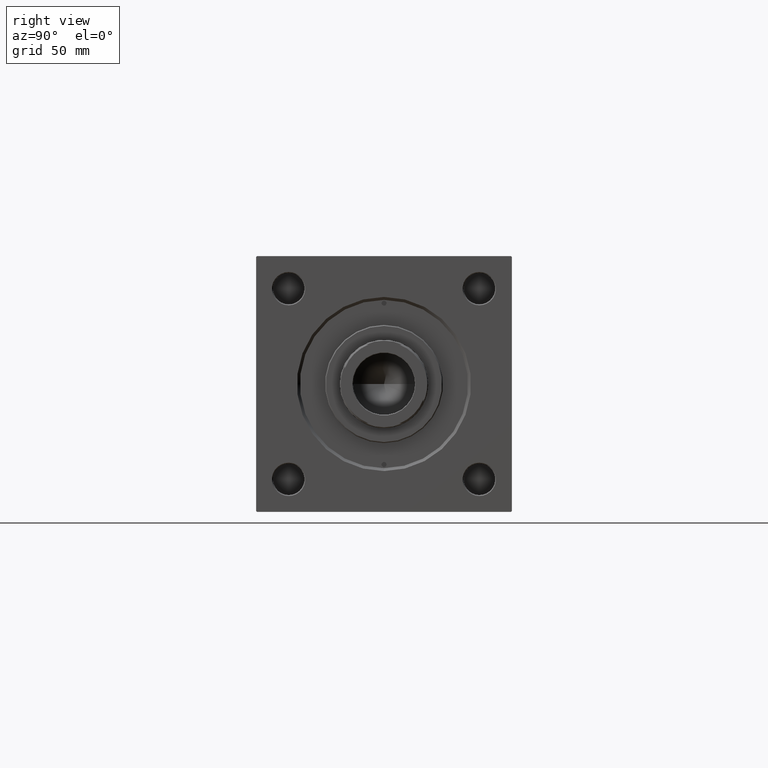
[diagram: clean part render]
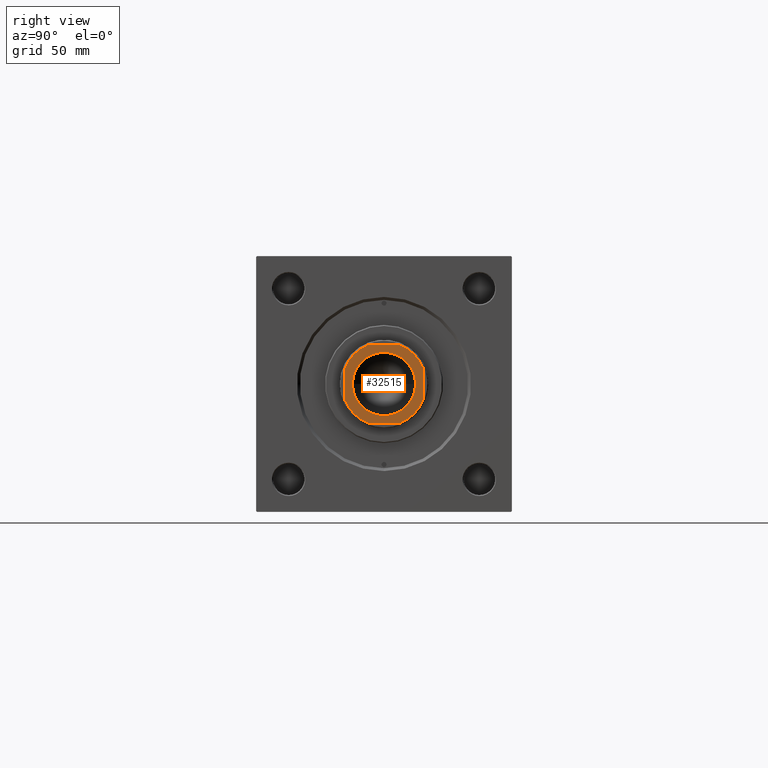
[diagram: same view with one face highlighted and labeled with its STEP entity id]
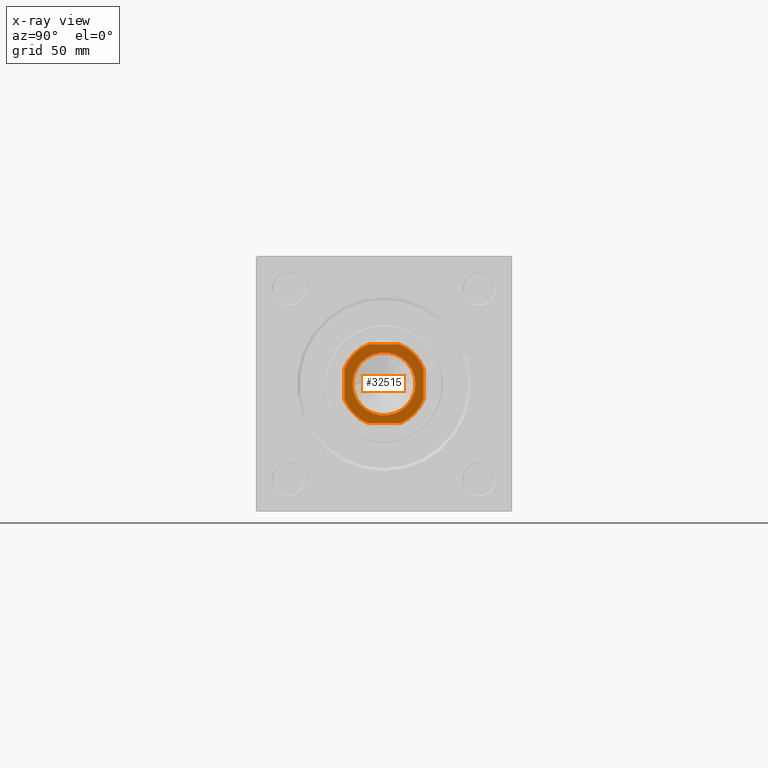
[diagram: x-ray of the same camera — body ghosted, the highlighted face saturated]
A machine part, right view. The second image highlights one B-rep face of the part: STEP entity #32515.
The next image is the same camera in x-ray: the body ghosted, the highlighted face saturated — about 0% of this face is hidden behind the body in this view.
In plain terms, the highlighted planar face has unit normal (1, 0, 0).
Its self-contained STEP definition (entity closure, byte-faithful):
#1311 = DIRECTION ( 'NONE',  ( 1.000000000000000000, 0.000000000000000000, 0.000000000000000000 ) ) ;
#2288 = LINE ( 'NONE', #5634, #15943 ) ;
#2691 = CARTESIAN_POINT ( 'NONE',  ( -20.00000000000000355, 20.00000000000000000, 258.0000000000000000 ) ) ;
#2832 = DIRECTION ( 'NONE',  ( 0.000000000000000000, -0.000000000000000000, -1.000000000000000000 ) ) ;
#3346 = AXIS2_PLACEMENT_3D ( 'NONE', #16432, #28246, #42892 ) ;
#3560 = CARTESIAN_POINT ( 'NONE',  ( -7.889866919029592474, -20.00000000000000000, 258.0000000000000000 ) ) ;
#4360 = EDGE_CURVE ( 'NONE', #49126, #42669, #29019, .T. ) ;
#4805 = CARTESIAN_POINT ( 'NONE',  ( 20.00000000000000000, 7.889866919029812742, 258.0000000000000000 ) ) ;
#5317 = VECTOR ( 'NONE', #18013, 1000.000000000000000 ) ;
#5329 = ORIENTED_EDGE ( 'NONE', *, *, #6344, .T. ) ;
#5511 = VERTEX_POINT ( 'NONE', #31157 ) ;
#5634 = CARTESIAN_POINT ( 'NONE',  ( -20.00000000000000355, 20.00000000000000000, 258.0000000000000000 ) ) ;
#6344 = EDGE_CURVE ( 'NONE', #35658, #47773, #34002, .T. ) ;
#6958 = CIRCLE ( 'NONE', #19311, 16.05000000000003624 ) ;
#7012 = DIRECTION ( 'NONE',  ( 1.000000000000000000, 0.000000000000000000, 0.000000000000000000 ) ) ;
#7017 = ORIENTED_EDGE ( 'NONE', *, *, #29106, .T. ) ;
#7167 = AXIS2_PLACEMENT_3D ( 'NONE', #28269, #8475, #40093 ) ;
#7708 = EDGE_CURVE ( 'NONE', #19312, #5511, #6958, .T. ) ;
#8475 = DIRECTION ( 'NONE',  ( -0.000000000000000000, 0.000000000000000000, 1.000000000000000000 ) ) ;
#9203 = CARTESIAN_POINT ( 'NONE',  ( 7.889866919029479675, -20.00000000000000000, 258.0000000000000000 ) ) ;
#11047 = EDGE_CURVE ( 'NONE', #35108, #35658, #17757, .T. ) ;
#11838 = CARTESIAN_POINT ( 'NONE',  ( -19.99999999999999645, -20.00000000000000000, 258.0000000000000000 ) ) ;
#12296 = CARTESIAN_POINT ( 'NONE',  ( -16.05000000000003624, 1.965558112631506543E-15, 258.0000000000000000 ) ) ;
#12364 = ORIENTED_EDGE ( 'NONE', *, *, #45121, .T. ) ;
#13419 = ORIENTED_EDGE ( 'NONE', *, *, #44448, .T. ) ;
#15295 = DIRECTION ( 'NONE',  ( 1.000000000000000000, 0.000000000000000000, 0.000000000000000000 ) ) ;
#15525 = ORIENTED_EDGE ( 'NONE', *, *, #17708, .T. ) ;
#15812 = DIRECTION ( 'NONE',  ( 0.000000000000000000, -0.000000000000000000, -1.000000000000000000 ) ) ;
#15943 = VECTOR ( 'NONE', #16978, 1000.000000000000000 ) ;
#16432 = CARTESIAN_POINT ( 'NONE',  ( 0.000000000000000000, 0.000000000000000000, 258.0000000000000000 ) ) ;
#16978 = DIRECTION ( 'NONE',  ( -1.000000000000000000, -0.000000000000000000, -0.000000000000000000 ) ) ;
#17598 = ORIENTED_EDGE ( 'NONE', *, *, #4360, .T. ) ;
#17708 = EDGE_CURVE ( 'NONE', #42669, #36824, #37899, .T. ) ;
#17757 = LINE ( 'NONE', #49079, #5317 ) ;
#17872 = VECTOR ( 'NONE', #34293, 1000.000000000000000 ) ;
#18013 = DIRECTION ( 'NONE',  ( -1.734723475976807094E-16, 1.000000000000000000, -0.000000000000000000 ) ) ;
#18246 = ORIENTED_EDGE ( 'NONE', *, *, #36097, .T. ) ;
#18340 = LINE ( 'NONE', #11838, #37790 ) ;
#19311 = AXIS2_PLACEMENT_3D ( 'NONE', #50483, #15812, #15295 ) ;
#19312 = VERTEX_POINT ( 'NONE', #12296 ) ;
#20027 = PLANE ( 'NONE',  #3346 ) ;
#20147 = DIRECTION ( 'NONE',  ( 1.000000000000000000, 0.000000000000000000, 0.000000000000000000 ) ) ;
#20604 = CARTESIAN_POINT ( 'NONE',  ( -20.00000000000000000, 7.889866919029588921, 258.0000000000000000 ) ) ;
#21505 = CARTESIAN_POINT ( 'NONE',  ( -20.00000000000000000, -7.889866919029596026, 258.0000000000000000 ) ) ;
#22537 = AXIS2_PLACEMENT_3D ( 'NONE', #48220, #28952, #36412 ) ;
#23628 = FACE_BOUND ( 'NONE', #39918, .T. ) ;
#25330 = EDGE_CURVE ( 'NONE', #36824, #27012, #29331, .T. ) ;
#26248 = ORIENTED_EDGE ( 'NONE', *, *, #7708, .T. ) ;
#26551 = AXIS2_PLACEMENT_3D ( 'NONE', #28560, #28047, #1311 ) ;
#27012 = VERTEX_POINT ( 'NONE', #3560 ) ;
#28047 = DIRECTION ( 'NONE',  ( -0.000000000000000000, 0.000000000000000000, 1.000000000000000000 ) ) ;
#28246 = DIRECTION ( 'NONE',  ( -0.000000000000000000, 0.000000000000000000, 1.000000000000000000 ) ) ;
#28269 = CARTESIAN_POINT ( 'NONE',  ( 0.000000000000000000, 0.000000000000000000, 258.0000000000000000 ) ) ;
#28560 = CARTESIAN_POINT ( 'NONE',  ( 0.000000000000000000, 0.000000000000000000, 258.0000000000000000 ) ) ;
#28952 = DIRECTION ( 'NONE',  ( -0.000000000000000000, 0.000000000000000000, 1.000000000000000000 ) ) ;
#29019 = CIRCLE ( 'NONE', #26551, 21.49999999999994316 ) ;
#29106 = EDGE_CURVE ( 'NONE', #5511, #19312, #41792, .T. ) ;
#29331 = CIRCLE ( 'NONE', #7167, 21.49999999999994316 ) ;
#31157 = CARTESIAN_POINT ( 'NONE',  ( 16.05000000000003624, 0.000000000000000000, 258.0000000000000000 ) ) ;
#32371 = AXIS2_PLACEMENT_3D ( 'NONE', #39165, #35554, #20147 ) ;
#32515 = ADVANCED_FACE ( 'NONE', ( #23628, #39050 ), #20027, .T. ) ;
#34002 = CIRCLE ( 'NONE', #22537, 21.50000000000002132 ) ;
#34293 = DIRECTION ( 'NONE',  ( 1.734723475976807094E-16, -1.000000000000000000, 0.000000000000000000 ) ) ;
#35108 = VERTEX_POINT ( 'NONE', #44493 ) ;
#35554 = DIRECTION ( 'NONE',  ( -0.000000000000000000, 0.000000000000000000, 1.000000000000000000 ) ) ;
#35658 = VERTEX_POINT ( 'NONE', #4805 ) ;
#35704 = CARTESIAN_POINT ( 'NONE',  ( -7.889866919029592474, 20.00000000000000000, 258.0000000000000000 ) ) ;
#36097 = EDGE_CURVE ( 'NONE', #27012, #41661, #18340, .T. ) ;
#36412 = DIRECTION ( 'NONE',  ( 1.000000000000000000, 0.000000000000000000, 0.000000000000000000 ) ) ;
#36824 = VERTEX_POINT ( 'NONE', #21505 ) ;
#37790 = VECTOR ( 'NONE', #7012, 1000.000000000000000 ) ;
#37899 = LINE ( 'NONE', #2691, #17872 ) ;
#39050 = FACE_OUTER_BOUND ( 'NONE', #49106, .T. ) ;
#39165 = CARTESIAN_POINT ( 'NONE',  ( 0.000000000000000000, 0.000000000000000000, 258.0000000000000000 ) ) ;
#39918 = EDGE_LOOP ( 'NONE', ( #7017, #26248 ) ) ;
#40093 = DIRECTION ( 'NONE',  ( 1.000000000000000000, 0.000000000000000000, 0.000000000000000000 ) ) ;
#41661 = VERTEX_POINT ( 'NONE', #9203 ) ;
#41792 = CIRCLE ( 'NONE', #47556, 16.05000000000003624 ) ;
#42180 = CIRCLE ( 'NONE', #32371, 21.49999999999990052 ) ;
#42669 = VERTEX_POINT ( 'NONE', #20604 ) ;
#42892 = DIRECTION ( 'NONE',  ( 1.000000000000000000, 0.000000000000000000, 0.000000000000000000 ) ) ;
#44448 = EDGE_CURVE ( 'NONE', #47773, #49126, #2288, .T. ) ;
#44493 = CARTESIAN_POINT ( 'NONE',  ( 20.00000000000000000, -7.889866919029476122, 258.0000000000000000 ) ) ;
#45121 = EDGE_CURVE ( 'NONE', #41661, #35108, #42180, .T. ) ;
#46999 = CARTESIAN_POINT ( 'NONE',  ( 7.889866919029809189, 20.00000000000000000, 258.0000000000000000 ) ) ;
#47556 = AXIS2_PLACEMENT_3D ( 'NONE', #50347, #2832, #49844 ) ;
#47566 = ORIENTED_EDGE ( 'NONE', *, *, #11047, .T. ) ;
#47773 = VERTEX_POINT ( 'NONE', #46999 ) ;
#48095 = ORIENTED_EDGE ( 'NONE', *, *, #25330, .T. ) ;
#48220 = CARTESIAN_POINT ( 'NONE',  ( 0.000000000000000000, 0.000000000000000000, 258.0000000000000000 ) ) ;
#49079 = CARTESIAN_POINT ( 'NONE',  ( 19.99999999999999645, 20.00000000000000000, 258.0000000000000000 ) ) ;
#49106 = EDGE_LOOP ( 'NONE', ( #47566, #5329, #13419, #17598, #15525, #48095, #18246, #12364 ) ) ;
#49126 = VERTEX_POINT ( 'NONE', #35704 ) ;
#49844 = DIRECTION ( 'NONE',  ( 1.000000000000000000, 0.000000000000000000, 0.000000000000000000 ) ) ;
#50347 = CARTESIAN_POINT ( 'NONE',  ( 0.000000000000000000, 0.000000000000000000, 258.0000000000000000 ) ) ;
#50483 = CARTESIAN_POINT ( 'NONE',  ( 0.000000000000000000, 0.000000000000000000, 258.0000000000000000 ) ) ;